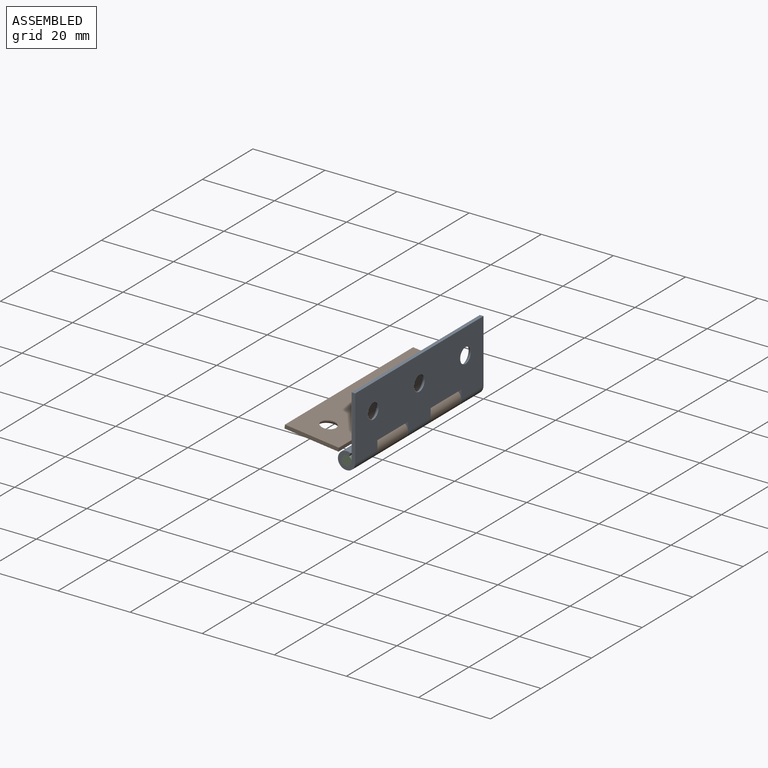
[diagram: assembled view]
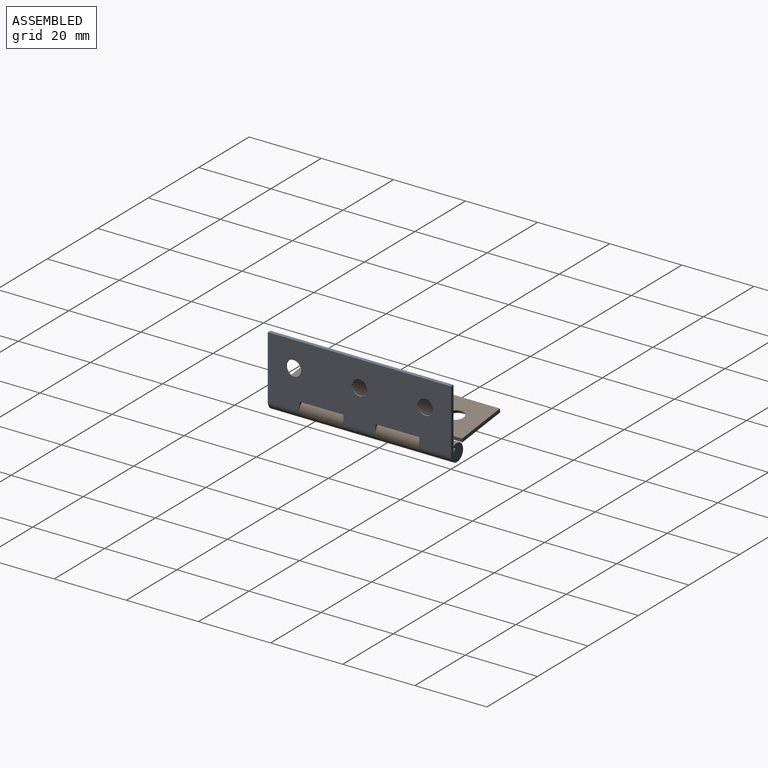
[diagram: assembled view, second angle]
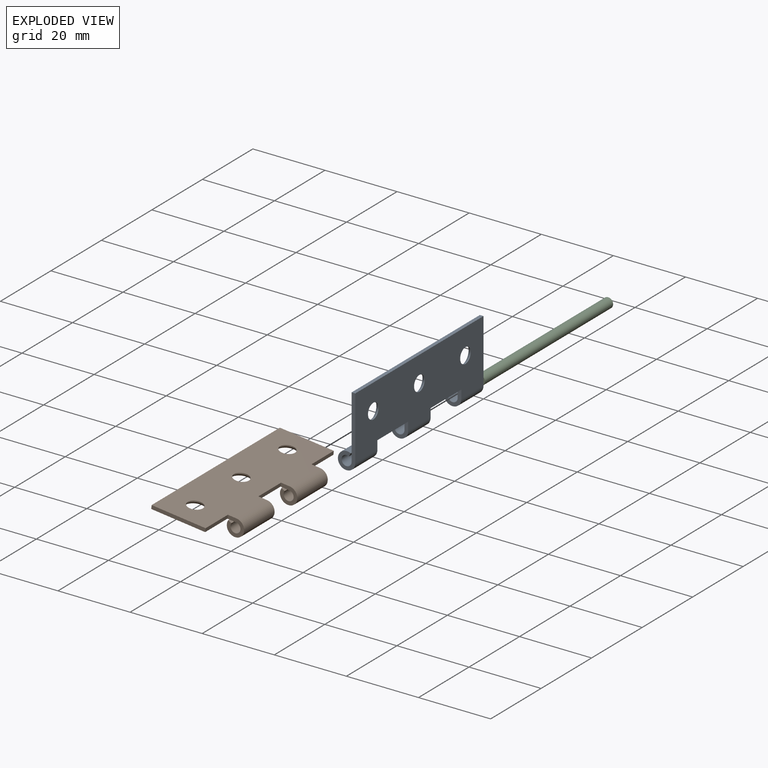
[diagram: exploded view]
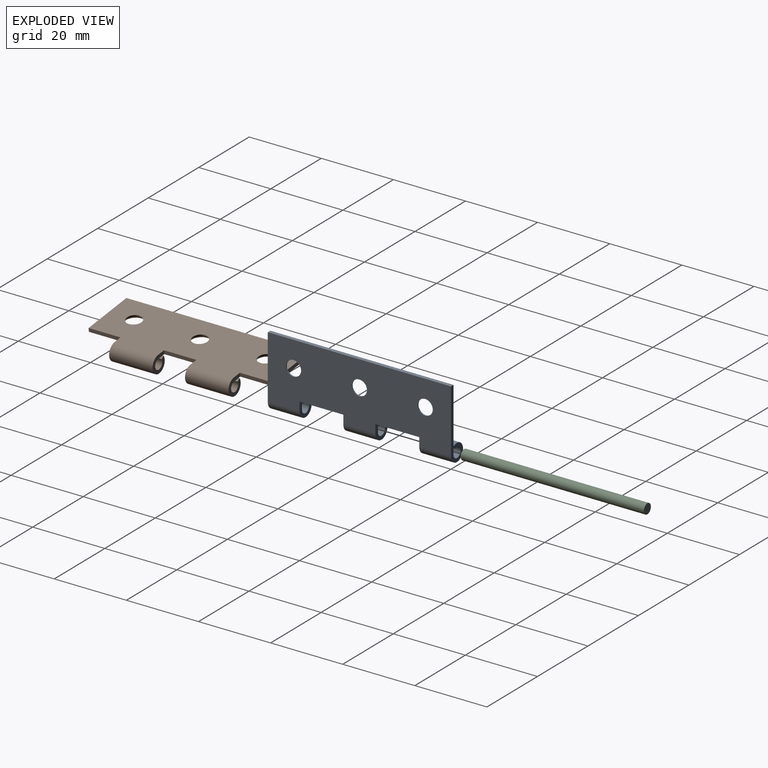
[diagram: exploded view, second angle]
ASSEMBLY  parts=3 mates=4
PART A: 26 faces, bbox 19.9x4.8x50.8 mm
  f0: cylinder r=2.1mm len=4.19mm, axis (0,1,0), area 4.3mm2, adj f1,f15
  f1: cone r=2.69mm half-angle=41deg, axis (0,1,0), area 13.7mm2, adj f0,f17
  f2: cylinder r=2.1mm len=4.19mm, axis (0,1,0), area 4.3mm2, adj f3,f15
  f3: cone r=2.69mm half-angle=41deg, axis (0,1,0), area 13.7mm2, adj f2,f17
  f4: cylinder r=2.1mm len=4.19mm, axis (0,1,0), area 4.3mm2, adj f5,f15
  f5: cone r=2.69mm half-angle=41deg, axis (0,1,0), area 13.7mm2, adj f4,f17
  f6: cylinder r=2.41mm len=8.79mm, axis (0,0,-1), area 110mm2, adj f14,f15,f19,f25
  f7: cylinder r=1.39mm len=8.79mm, axis (0,0,-1), area 63.5mm2, adj f14,f17,f19,f25
  f8: cylinder r=2.41mm len=8.79mm, axis (0,0,-1), area 110mm2, adj f13,f15,f18,f20
  f9: cylinder r=1.39mm len=8.79mm, axis (0,0,-1), area 63.5mm2, adj f13,f17,f18,f20
  f10: cylinder r=2.41mm len=8.89mm, axis (0,0,-1), area 111.3mm2, adj f12,f15,f22,f23
  f11: cylinder r=1.39mm len=8.89mm, axis (0,0,-1), area 64.3mm2, adj f12,f17,f22,f23
  f12: plane 8.89x0.9mm, normal (-0.47,-0.88,0), area 9mm2, adj f10,f11,f22,f23
  f13: plane 8.79x0.9mm, normal (-0.47,-0.88,0), area 8.9mm2, adj f8,f9,f18,f20
  f14: plane 8.79x0.9mm, normal (-0.47,-0.88,0), area 8.9mm2, adj f6,f7,f19,f25
  f15: plane 50.8x17.48mm, normal (0,-1,0), area 787.8mm2, adj f0,f2,f4,f6,f8,f10,f16,f18
  f16: plane 50.8x1.02mm, normal (1,0,0), area 51.6mm2, adj f15,f17,f18,f19
  f17: plane 50.8x17.48mm, normal (0,1,0), area 760.9mm2, adj f1,f3,f5,f7,f9,f11,f16,f18
  f18: plane 19.88x4.81mm, normal (0,0,1), area 27.8mm2, adj f8,f9,f13,f15,f16,f17
  f19: plane 19.88x4.81mm, normal (0,0,-1), area 27.8mm2, adj f6,f7,f14,f15,f16,f17
  f20: plane 4.81x4.81mm, normal (0,0,-1), area 12.5mm2, adj f8,f9,f13,f15,f17,f21
  f21: plane 12.17x1.02mm, normal (-1,0,0), area 12.4mm2, adj f15,f17,f20,f22
  f22: plane 4.81x4.81mm, normal (0,0,1), area 12.5mm2, adj f10,f11,f12,f15,f17,f21
  f23: plane 4.81x4.81mm, normal (0,0,-1), area 12.5mm2, adj f10,f11,f12,f15,f17,f24
  f24: plane 12.17x1.02mm, normal (-1,0,0), area 12.4mm2, adj f15,f17,f23,f25
  f25: plane 4.81x4.81mm, normal (0,0,1), area 12.5mm2, adj f6,f7,f14,f15,f17,f24
PART B: 24 faces, bbox 19.9x4.8x50.8 mm
  f0: cylinder r=2.1mm len=4.19mm, axis (0,1,0), area 4.3mm2, adj f1,f12
  f1: cone r=2.69mm half-angle=41deg, axis (0,1,0), area 13.7mm2, adj f0,f14
  f2: cylinder r=2.1mm len=4.19mm, axis (0,1,0), area 4.3mm2, adj f3,f12
  f3: cone r=2.69mm half-angle=41deg, axis (0,1,0), area 13.7mm2, adj f2,f14
  f4: cylinder r=2.1mm len=4.19mm, axis (0,1,0), area 4.3mm2, adj f5,f12
  f5: cone r=2.69mm half-angle=41deg, axis (0,1,0), area 13.7mm2, adj f4,f14
  f6: cylinder r=2.41mm len=12.07mm, axis (0,0,-1), area 151mm2, adj f11,f12,f17,f21
  f7: cylinder r=1.39mm len=12.07mm, axis (0,0,-1), area 87.2mm2, adj f11,f14,f17,f21
  f8: cylinder r=2.41mm len=12.07mm, axis (0,0,-1), area 151mm2, adj f10,f12,f20,f22
  f9: cylinder r=1.39mm len=12.07mm, axis (0,0,-1), area 87.2mm2, adj f10,f14,f20,f22
  f10: plane 12.07x0.9mm, normal (0.47,-0.88,0), area 12.3mm2, adj f8,f9,f20,f22
  f11: plane 12.07x0.9mm, normal (0.47,-0.88,0), area 12.3mm2, adj f6,f7,f17,f21
  f12: plane 50.8x17.48mm, normal (0,-1,0), area 782.2mm2, adj f0,f2,f4,f6,f8,f13,f15,f16
  f13: plane 50.8x1.02mm, normal (-1,0,0), area 51.6mm2, adj f12,f14,f15,f16
  f14: plane 50.8x17.48mm, normal (0,1,0), area 755.3mm2, adj f1,f3,f5,f7,f9,f13,f15,f16
  f15: plane 15.07x1.02mm, normal (0,0,1), area 15.3mm2, adj f12,f13,f14,f23
  f16: plane 15.07x1.02mm, normal (0,0,-1), area 15.3mm2, adj f12,f13,f14,f18
  f17: plane 4.81x4.81mm, normal (0,0,-1), area 12.5mm2, adj f6,f7,f11,f12,f14,f18
  f18: plane 8.84x1.02mm, normal (1,0,0), area 9mm2, adj f12,f14,f16,f17
  f19: plane 8.99x1.02mm, normal (1,0,0), area 9.1mm2, adj f12,f14,f20,f21
  f20: plane 4.81x4.81mm, normal (0,0,-1), area 12.5mm2, adj f8,f9,f10,f12,f14,f19
  f21: plane 4.81x4.81mm, normal (0,0,1), area 12.5mm2, adj f6,f7,f11,f12,f14,f19
  f22: plane 4.81x4.81mm, normal (0,0,1), area 12.5mm2, adj f8,f9,f10,f12,f14,f23
  f23: plane 8.84x1.02mm, normal (1,0,0), area 9mm2, adj f12,f14,f15,f22
PART C: 3 faces, bbox 2.8x2.8x50.8 mm
  f0: cylinder r=1.39mm len=50.8mm, axis (0,0,1), area 442.6mm2, adj f1,f2
  f1: plane 2.77x2.77mm, normal (0,0,-1), area 6mm2, adj f0
  f2: plane 2.77x2.77mm, normal (0,0,1), area 6mm2, adj f0
PLACE A rot(axis=(0.58,-0.58,0.58),120deg) t=(-2.41,-25.4,0)mm
PLACE B rot(axis=(-1,0.06,0.06),90.2deg) t=(-2.41,-25.45,0)mm
PLACE C rot(axis=(1,0,0),90deg) t=(-2.41,-25.4,0)mm
MATE cylindrical B.f6 <-> A.f6  axis (0,-1,0) through (-2.41,-14.92,0)mm
MATE planar B.f17 <-> A.f20  axis (0,-1,0) through (-2.47,-42.01,0.12)mm
MATE planar C.f0 <-> A.f18  axis (0,-1,0) through (-2.41,-50.8,0)mm
MATE cylindrical C.f0 <-> A.f6  axis (0,-1,0) through (-2.41,-25.4,0)mm
